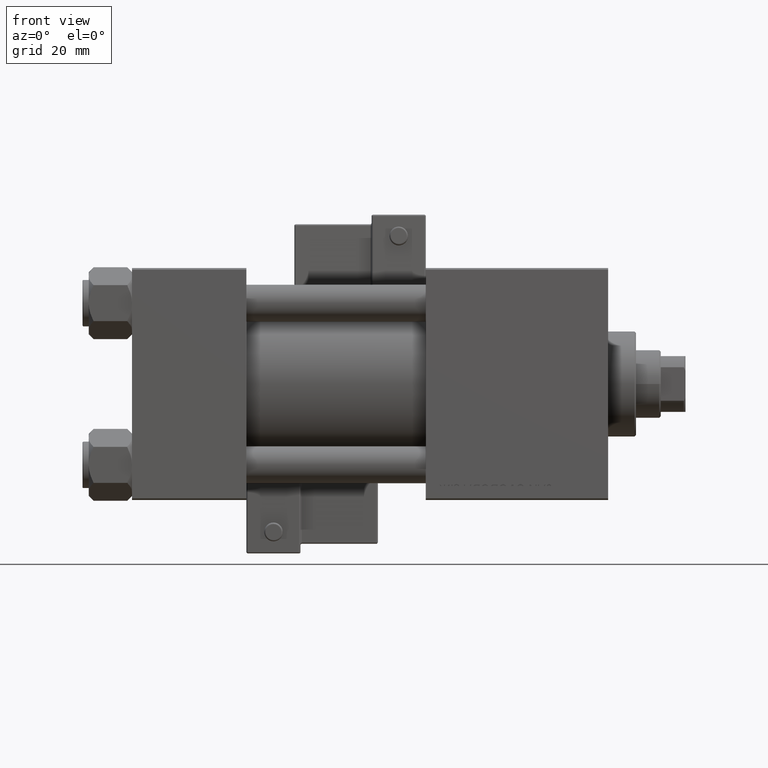
[diagram: clean part render]
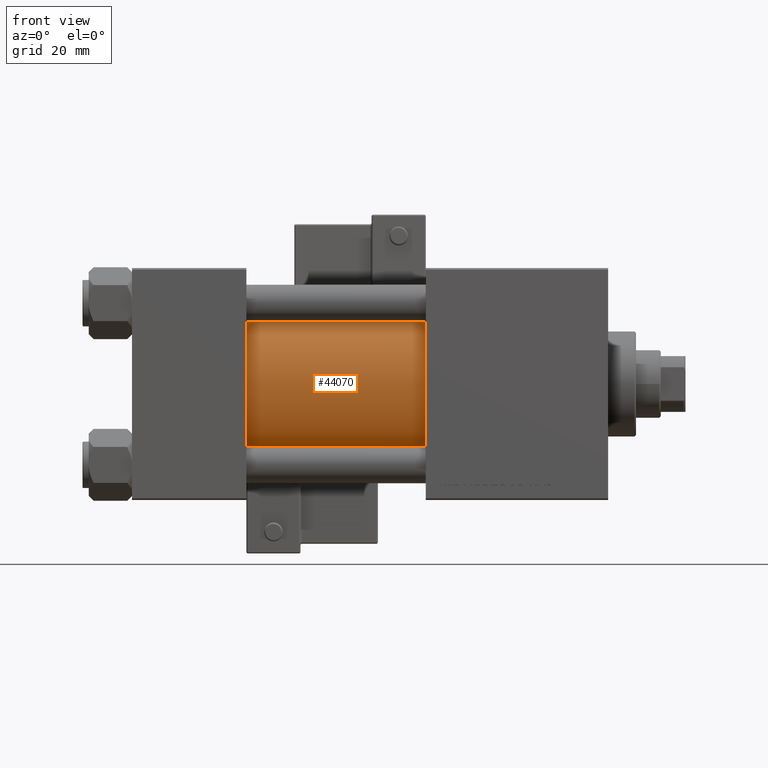
[diagram: same view with one face highlighted and labeled with its STEP entity id]
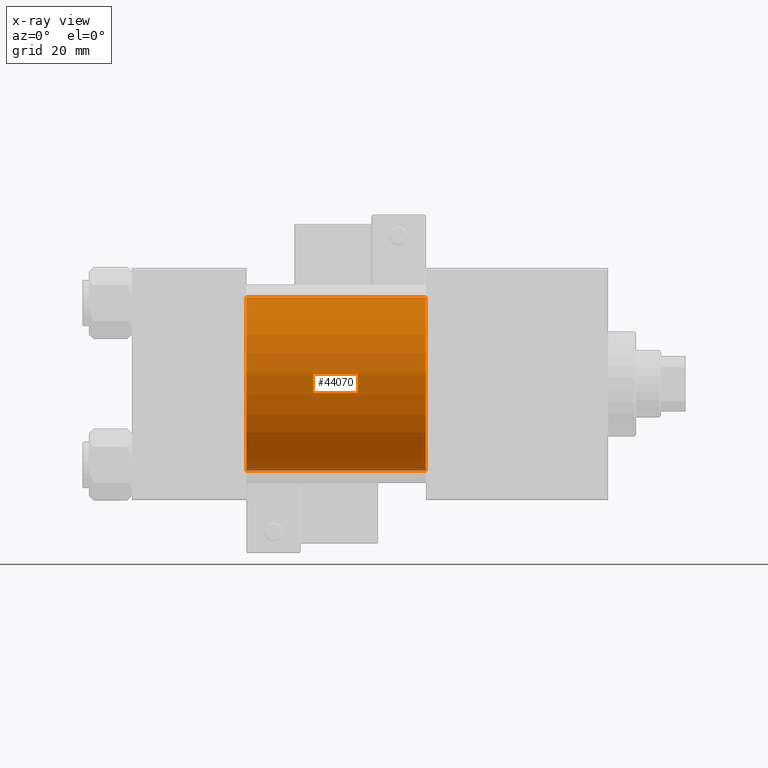
[diagram: x-ray of the same camera — body ghosted, the highlighted face saturated]
A machine part, front view. The second image highlights one B-rep face of the part: STEP entity #44070.
The next image is the same camera in x-ray: the body ghosted, the highlighted face saturated — about 3% of this face is hidden behind the body in this view.
In plain terms, the highlighted cylindrical surface (partial cylindrical patch) has radius 28 mm, axis along (-1, -0, -0).
Its self-contained STEP definition (entity closure, byte-faithful):
#457 = EDGE_CURVE ( 'NONE', #44757, #1379, #51557, .T. ) ;
#1379 = VERTEX_POINT ( 'NONE', #29436 ) ;
#1422 = CARTESIAN_POINT ( 'NONE',  ( 95.00000000000000000, -2.602085213965210642E-15, 28.00000000000000000 ) ) ;
#1960 = EDGE_CURVE ( 'NONE', #44757, #46845, #34906, .T. ) ;
#5644 = ORIENTED_EDGE ( 'NONE', *, *, #36171, .F. ) ;
#8028 = VERTEX_POINT ( 'NONE', #25993 ) ;
#12965 = CARTESIAN_POINT ( 'NONE',  ( 95.00000000000000000, 8.269258236473776482E-16, -28.00000000000000000 ) ) ;
#13646 = DIRECTION ( 'NONE',  ( -1.000000000000000000, -0.000000000000000000, -0.000000000000000000 ) ) ;
#14386 = EDGE_CURVE ( 'NONE', #1379, #8028, #32660, .T. ) ;
#17053 = AXIS2_PLACEMENT_3D ( 'NONE', #30351, #19180, #47331 ) ;
#17580 = CYLINDRICAL_SURFACE ( 'NONE', #30376, 28.00000000000000000 ) ;
#17838 = DIRECTION ( 'NONE',  ( -1.000000000000000000, -0.000000000000000000, -0.000000000000000000 ) ) ;
#18581 = CARTESIAN_POINT ( 'NONE',  ( 95.00000000000000000, 8.269258236473776482E-16, -28.00000000000000000 ) ) ;
#19160 = DIRECTION ( 'NONE',  ( 0.000000000000000000, 0.000000000000000000, 1.000000000000000000 ) ) ;
#19180 = DIRECTION ( 'NONE',  ( 1.000000000000000000, 0.000000000000000000, 0.000000000000000000 ) ) ;
#22842 = DIRECTION ( 'NONE',  ( -1.000000000000000000, -0.000000000000000000, -0.000000000000000000 ) ) ;
#23311 = AXIS2_PLACEMENT_3D ( 'NONE', #29840, #37830, #26111 ) ;
#23772 = VECTOR ( 'NONE', #22842, 1000.000000000000000 ) ;
#24515 = EDGE_LOOP ( 'NONE', ( #5644, #37543, #51115, #37780 ) ) ;
#25993 = CARTESIAN_POINT ( 'NONE',  ( 37.00000000000000000, 8.269258236473776482E-16, -28.00000000000000000 ) ) ;
#26111 = DIRECTION ( 'NONE',  ( 0.000000000000000000, 0.000000000000000000, 1.000000000000000000 ) ) ;
#29436 = CARTESIAN_POINT ( 'NONE',  ( 37.00000000000000000, -2.602085213965210642E-15, 28.00000000000000000 ) ) ;
#29840 = CARTESIAN_POINT ( 'NONE',  ( 37.00000000000000000, -2.602085213965210642E-15, 0.000000000000000000 ) ) ;
#30351 = CARTESIAN_POINT ( 'NONE',  ( 95.00000000000000000, -2.602085213965210642E-15, 0.000000000000000000 ) ) ;
#30376 = AXIS2_PLACEMENT_3D ( 'NONE', #33802, #17838, #19160 ) ;
#32660 = CIRCLE ( 'NONE', #23311, 28.00000000000000000 ) ;
#33802 = CARTESIAN_POINT ( 'NONE',  ( 95.00000000000000000, -2.602085213965210642E-15, 0.000000000000000000 ) ) ;
#34906 = CIRCLE ( 'NONE', #17053, 28.00000000000000000 ) ;
#36171 = EDGE_CURVE ( 'NONE', #46845, #8028, #51261, .T. ) ;
#37543 = ORIENTED_EDGE ( 'NONE', *, *, #1960, .F. ) ;
#37780 = ORIENTED_EDGE ( 'NONE', *, *, #14386, .T. ) ;
#37830 = DIRECTION ( 'NONE',  ( 1.000000000000000000, -0.000000000000000000, 0.000000000000000000 ) ) ;
#38233 = VECTOR ( 'NONE', #13646, 1000.000000000000000 ) ;
#41857 = CARTESIAN_POINT ( 'NONE',  ( 95.00000000000000000, -2.602085213965210642E-15, 28.00000000000000000 ) ) ;
#42047 = FACE_OUTER_BOUND ( 'NONE', #24515, .T. ) ;
#44070 = ADVANCED_FACE ( 'NONE', ( #42047 ), #17580, .T. ) ;
#44757 = VERTEX_POINT ( 'NONE', #41857 ) ;
#46845 = VERTEX_POINT ( 'NONE', #12965 ) ;
#47331 = DIRECTION ( 'NONE',  ( 0.000000000000000000, 0.000000000000000000, -1.000000000000000000 ) ) ;
#51115 = ORIENTED_EDGE ( 'NONE', *, *, #457, .T. ) ;
#51261 = LINE ( 'NONE', #18581, #23772 ) ;
#51557 = LINE ( 'NONE', #1422, #38233 ) ;